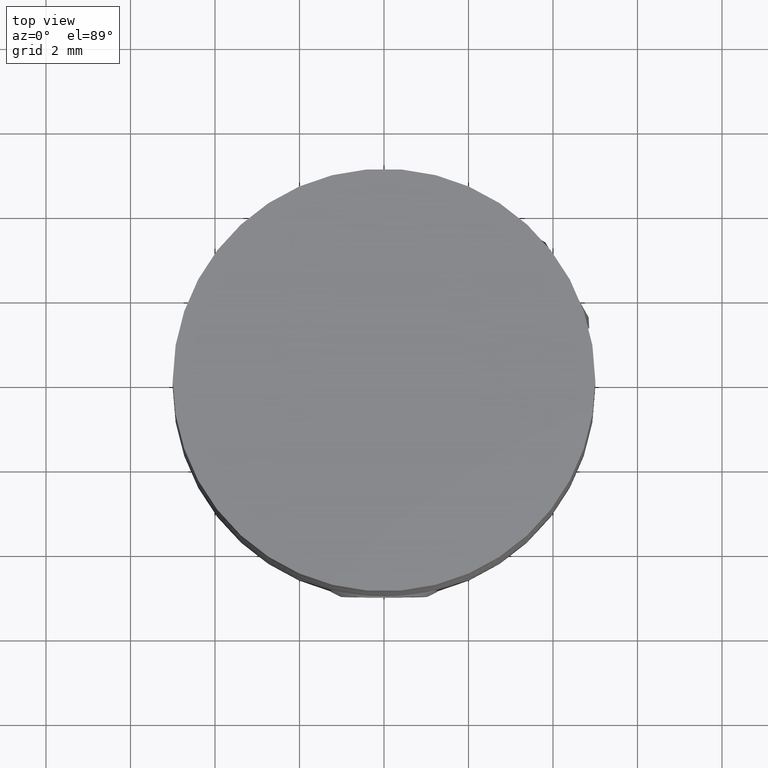
[diagram: clean part render]
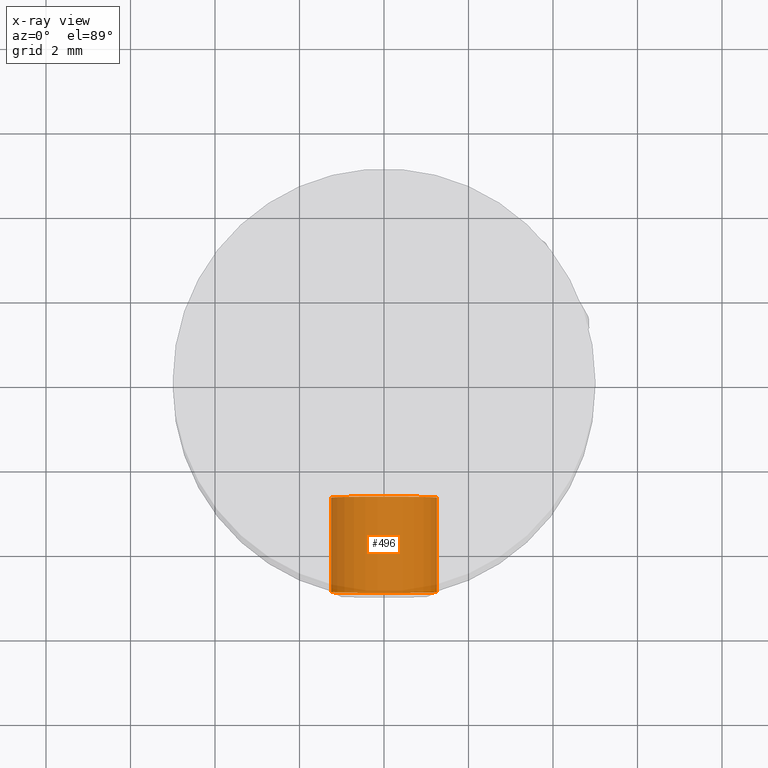
[diagram: x-ray — body ghosted, one internal face saturated and labeled with its STEP entity id]
A machine part, top view, then the same camera in x-ray: the body is ghosted and one INTERNAL B-rep face — a face not visible from any outside direction — is saturated and labeled: STEP entity #496.
In plain terms, the highlighted cylindrical surface (bore or boss wall) has radius 1.25 mm, axis along (-0, -1, 0).
Its self-contained STEP definition (entity closure, byte-faithful):
#496 = ADVANCED_FACE( '', ( #576, #577 ), #578, .T. );
#576 = FACE_OUTER_BOUND( '', #667, .T. );
#577 = FACE_OUTER_BOUND( '', #668, .T. );
#578 = CYLINDRICAL_SURFACE( '', #669, 1.25000000000000 );
#667 = EDGE_LOOP( '', ( #823 ) );
#668 = EDGE_LOOP( '', ( #824 ) );
#669 = AXIS2_PLACEMENT_3D( '', #825, #826, #827 );
#823 = ORIENTED_EDGE( '', *, *, #866, .T. );
#824 = ORIENTED_EDGE( '', *, *, #865, .F. );
#825 = CARTESIAN_POINT( '', ( 0.000000000000000, -2.00000000000000, -3.75000000000000 ) );
#826 = DIRECTION( '', ( -0.000000000000000, -1.00000000000000, 0.000000000000000 ) );
#827 = DIRECTION( '', ( -1.00000000000000, 0.000000000000000, 0.000000000000000 ) );
#865 = EDGE_CURVE( '', #933, #933, #934, .T. );
#866 = EDGE_CURVE( '', #935, #935, #936, .T. );
#933 = VERTEX_POINT( '', #1157 );
#934 = CIRCLE( '', #1158, 1.25000000000000 );
#935 = VERTEX_POINT( '', #1159 );
#936 = CIRCLE( '', #1160, 1.25000000000000 );
#1157 = CARTESIAN_POINT( '', ( -1.25000000000000, -2.65000000000000, -3.75000000000000 ) );
#1158 = AXIS2_PLACEMENT_3D( '', #1221, #1222, #1223 );
#1159 = CARTESIAN_POINT( '', ( -1.25000000000000, -4.88750000000000, -3.75000000000000 ) );
#1160 = AXIS2_PLACEMENT_3D( '', #1224, #1225, #1226 );
#1221 = CARTESIAN_POINT( '', ( 0.000000000000000, -2.65000000000000, -3.75000000000000 ) );
#1222 = DIRECTION( '', ( 0.000000000000000, 1.00000000000000, -0.000000000000000 ) );
#1223 = DIRECTION( '', ( -1.00000000000000, 0.000000000000000, 0.000000000000000 ) );
#1224 = CARTESIAN_POINT( '', ( 0.000000000000000, -4.88750000000000, -3.75000000000000 ) );
#1225 = DIRECTION( '', ( 0.000000000000000, 1.00000000000000, -0.000000000000000 ) );
#1226 = DIRECTION( '', ( -1.00000000000000, 0.000000000000000, 0.000000000000000 ) );